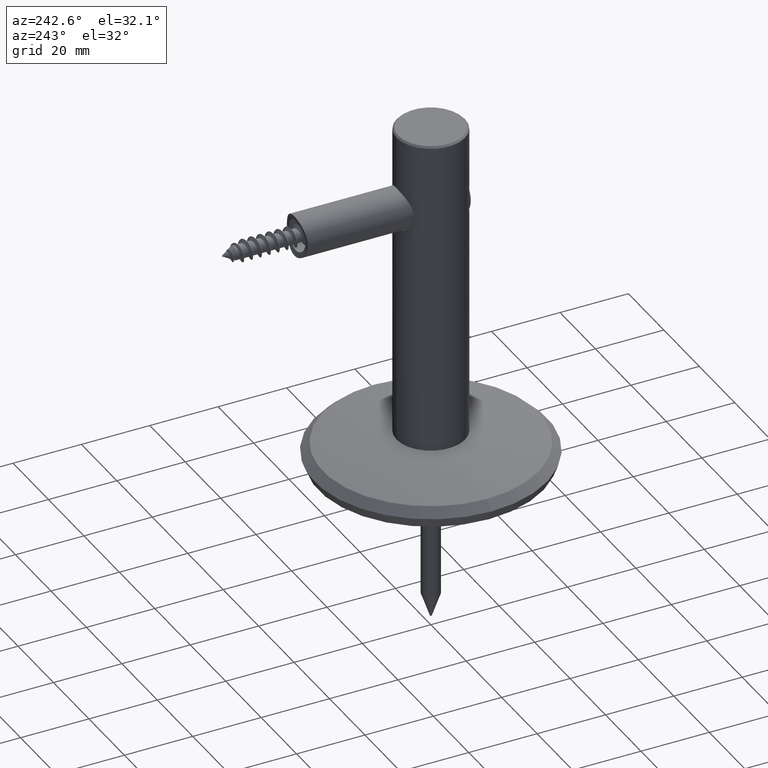
[diagram: clean part render]
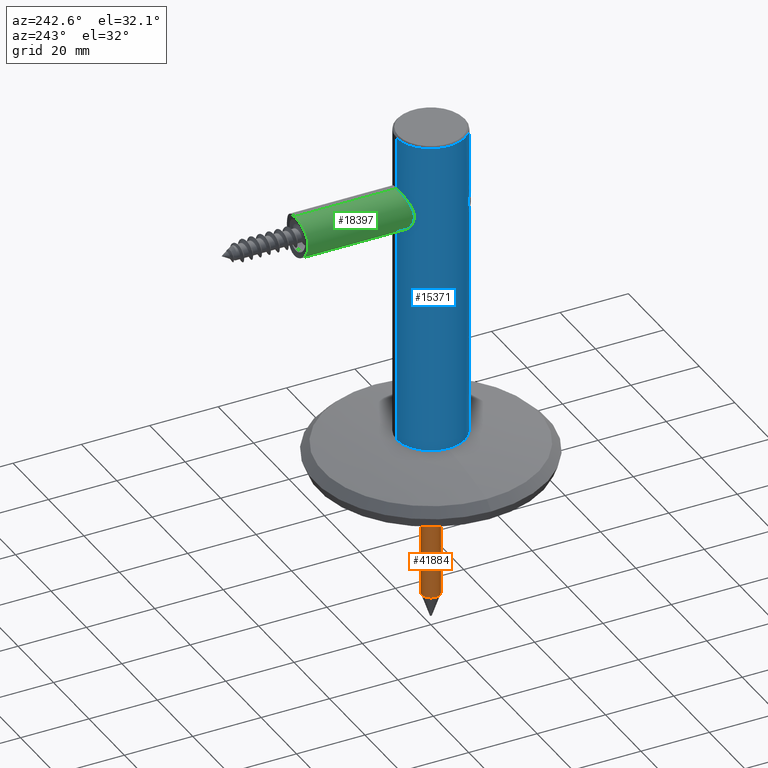
[diagram: same view with three faces highlighted in distinct colors, each labeled with its STEP entity id]
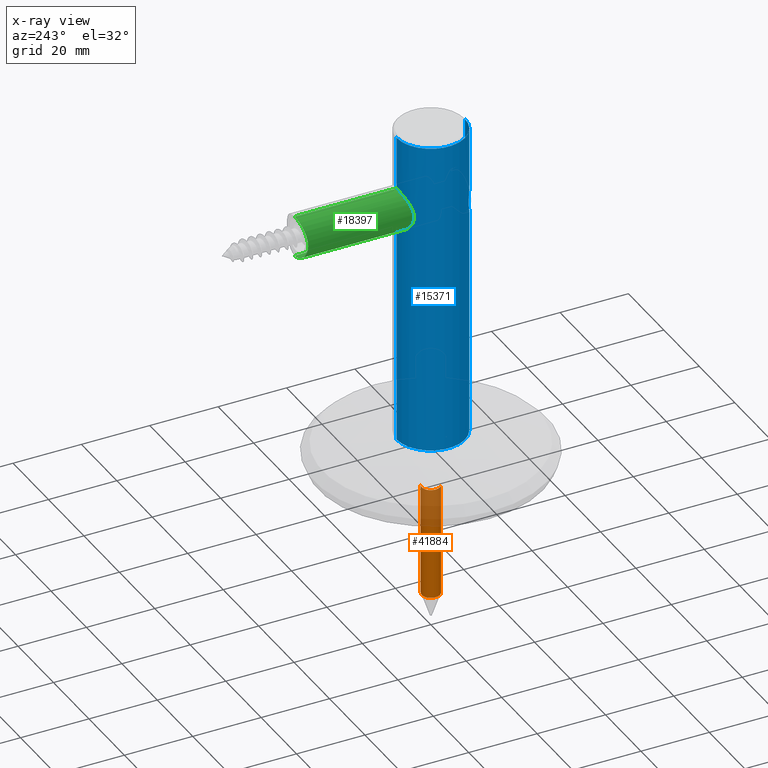
[diagram: x-ray of the same camera — body ghosted, the three highlighted faces saturated]
A machine part, auxiliary view with three faces highlighted in distinct colors.
The next image is the same camera in x-ray (body ghosted, the three faces saturated) — at least one of them is partly hidden behind the body in this view.
Their STEP definitions:

[orange] entity #41884 — the highlighted cylindrical surface (edge-blend (fillet) strip) has radius 2.65 mm, axis along (0, 0, 1).
#133 = AXIS2_PLACEMENT_3D ( 'NONE', #255, #23380, #23238 ) ;
#255 = CARTESIAN_POINT ( 'NONE',  ( 4.369811991584386443E-15, -38.00000000000000711, 1.925929944387235853E-30 ) ) ;
#1426 = VECTOR ( 'NONE', #23192, 1000.000000000000000 ) ;
#3486 = CARTESIAN_POINT ( 'NONE',  ( 4.336808689941963995E-16, -5.000000000000004441, 3.081487911019577365E-30 ) ) ;
#3767 = DIRECTION ( 'NONE',  ( -1.540743955509788682E-33, -1.000000000000000000, 7.703719777548943412E-34 ) ) ;
#5386 = EDGE_CURVE ( 'NONE', #16421, #29305, #13403, .T. ) ;
#6751 = DIRECTION ( 'NONE',  ( -1.192767006845509766E-16, 1.000000000000000000, 2.002967142162725287E-32 ) ) ;
#8569 = VECTOR ( 'NONE', #6751, 1000.000000000000000 ) ;
#8890 = ORIENTED_EDGE ( 'NONE', *, *, #41530, .T. ) ;
#8904 = CARTESIAN_POINT ( 'NONE',  ( 4.336808689941994563E-16, -5.000000000000004441, 1.155557966632341512E-30 ) ) ;
#11584 = EDGE_CURVE ( 'NONE', #35693, #16421, #12797, .T. ) ;
#12065 = DIRECTION ( 'NONE',  ( -1.192767006845509766E-16, 1.000000000000000000, 2.002967142162725287E-32 ) ) ;
#12797 = LINE ( 'NONE', #15960, #1426 ) ;
#13403 = CIRCLE ( 'NONE', #35400, 2.649999999999999023 ) ;
#13928 = ORIENTED_EDGE ( 'NONE', *, *, #5386, .T. ) ;
#15445 = EDGE_LOOP ( 'NONE', ( #8890, #33809, #13928, #32737 ) ) ;
#15960 = CARTESIAN_POINT ( 'NONE',  ( 2.649999999999999467, -5.000000000000004441, 1.774268510112162716E-16 ) ) ;
#16421 = VERTEX_POINT ( 'NONE', #32735 ) ;
#16715 = FACE_OUTER_BOUND ( 'NONE', #15445, .T. ) ;
#17023 = AXIS2_PLACEMENT_3D ( 'NONE', #8904, #12065, #21756 ) ;
#17056 = DIRECTION ( 'NONE',  ( 5.551115123125791330E-17, 0.000000000000000000, 1.000000000000000000 ) ) ;
#19844 = CIRCLE ( 'NONE', #133, 2.649999999999997247 ) ;
#21756 = DIRECTION ( 'NONE',  ( -1.000000000000000000, 0.000000000000000000, 5.551115123125788865E-17 ) ) ;
#23192 = DIRECTION ( 'NONE',  ( -1.192767006845509766E-16, 1.000000000000000000, 2.002967142162725287E-32 ) ) ;
#23238 = DIRECTION ( 'NONE',  ( -1.000000000000000000, 0.000000000000000000, 5.551115123125788865E-17 ) ) ;
#23380 = DIRECTION ( 'NONE',  ( -1.192767006845509766E-16, 1.000000000000000000, 2.002967142162725287E-32 ) ) ;
#26011 = CYLINDRICAL_SURFACE ( 'NONE', #17023, 2.649999999999999023 ) ;
#27988 = CARTESIAN_POINT ( 'NONE',  ( -2.649999999999993250, -38.00000000000000711, 1.471045507628349623E-16 ) ) ;
#29296 = LINE ( 'NONE', #36296, #8569 ) ;
#29305 = VERTEX_POINT ( 'NONE', #40324 ) ;
#30439 = EDGE_CURVE ( 'NONE', #34105, #29305, #29296, .T. ) ;
#32735 = CARTESIAN_POINT ( 'NONE',  ( 2.650000000000002576, -5.000000000000004441, 1.774268510112161484E-16 ) ) ;
#32737 = ORIENTED_EDGE ( 'NONE', *, *, #30439, .F. ) ;
#33809 = ORIENTED_EDGE ( 'NONE', *, *, #11584, .T. ) ;
#34105 = VERTEX_POINT ( 'NONE', #27988 ) ;
#35400 = AXIS2_PLACEMENT_3D ( 'NONE', #3486, #3767, #17056 ) ;
#35693 = VERTEX_POINT ( 'NONE', #41658 ) ;
#36296 = CARTESIAN_POINT ( 'NONE',  ( -2.649999999999998579, -5.000000000000004441, 1.471045507628345186E-16 ) ) ;
#40324 = CARTESIAN_POINT ( 'NONE',  ( -2.650000000000001688, -5.000000000000004441, 1.471045507628344446E-16 ) ) ;
#41530 = EDGE_CURVE ( 'NONE', #34105, #35693, #19844, .T. ) ;
#41658 = CARTESIAN_POINT ( 'NONE',  ( 2.650000000000001688, -38.00000000000000711, 1.774268510112166414E-16 ) ) ;
#41884 = ADVANCED_FACE ( 'NONE', ( #16715 ), #26011, .T. ) ;

[blue] entity #15371 — the highlighted cylindrical surface (partial cylindrical patch) has radius 10 mm, axis along (0, 0, -1).
#774 = CARTESIAN_POINT ( 'NONE',  ( -2.457174186745282096, -9.699437270301510594, 78.59456811138349508 ) ) ;
#862 = CIRCLE ( 'NONE', #10158, 9.999999999999987566 ) ;
#1167 = CARTESIAN_POINT ( 'NONE',  ( 2.311154935784771050E-15, -10.00000000000001776, 79.10000000000002274 ) ) ;
#1197 = CARTESIAN_POINT ( 'NONE',  ( -5.087154368414266159, -8.611798691936368044, 76.38380675357785776 ) ) ;
#1231 = CARTESIAN_POINT ( 'NONE',  ( -3.231176350246905304, 9.465125515268093537, 78.11855026395286927 ) ) ;
#1247 = CARTESIAN_POINT ( 'NONE',  ( -3.666632961282195513, -9.308008439816980228, 68.11265295109973295 ) ) ;
#1514 = CARTESIAN_POINT ( 'NONE',  ( -1.403813005560766491, 9.902980164608125691, 67.11165916234632789 ) ) ;
#1646 = CARTESIAN_POINT ( 'NONE',  ( -5.998146223145053746, 8.001431955169667987, 72.18365544772787246 ) ) ;
#1662 = CARTESIAN_POINT ( 'NONE',  ( -3.384054400561754328, -9.415323982167938865, 67.91277092575776919 ) ) ;
#1804 = CARTESIAN_POINT ( 'NONE',  ( -5.440551407277116169, -8.393070850260535565, 70.21920959023715625 ) ) ;
#1880 = CARTESIAN_POINT ( 'NONE',  ( 0.000000000000000000, 9.999999999999982236, 94.49999999999994316 ) ) ;
#1898 = EDGE_CURVE ( 'NONE', #29631, #33367, #37280, .T. ) ;
#2803 = CARTESIAN_POINT ( 'NONE',  ( -6.037779974283359330, -7.971665019287484277, 73.73679706541230416 ) ) ;
#4254 = CARTESIAN_POINT ( 'NONE',  ( -5.436598003498982479, -8.395571357975834204, 75.78795442250877556 ) ) ;
#4430 = CARTESIAN_POINT ( 'NONE',  ( -2.777311676397027362, -9.608021108032811952, 67.56603556446364678 ) ) ;
#4565 = CARTESIAN_POINT ( 'NONE',  ( -3.064673096970013333, 9.520526642615179114, 78.22006286501299144 ) ) ;
#4703 = CARTESIAN_POINT ( 'NONE',  ( -0.8103770617381570451, 9.975074806668049021, 66.99094149490500172 ) ) ;
#5821 = DIRECTION ( 'NONE',  ( 0.000000000000000000, 1.000000000000000000, 1.301042606982607046E-16 ) ) ;
#5934 = ORIENTED_EDGE ( 'NONE', *, *, #10392, .F. ) ;
#6176 = ORIENTED_EDGE ( 'NONE', *, *, #14144, .F. ) ;
#7303 = CARTESIAN_POINT ( 'NONE',  ( -3.670004657196928033, -9.306630549272245645, 77.88468685917253254 ) ) ;
#7881 = CARTESIAN_POINT ( 'NONE',  ( -5.729295447384023632, 8.198114526451783846, 74.98317838850394423 ) ) ;
#8012 = CARTESIAN_POINT ( 'NONE',  ( -1.019333223322620885, 9.949884950650000448, 78.96688847494655761 ) ) ;
#8036 = AXIS2_PLACEMENT_3D ( 'NONE', #23959, #13964, #26847 ) ;
#8111 = LINE ( 'NONE', #33148, #13302 ) ;
#8320 = CARTESIAN_POINT ( 'NONE',  ( -1.442266533413711471, -9.901847488652895990, 67.06205422235507285 ) ) ;
#9077 = DIRECTION ( 'NONE',  ( -0.000000000000000000, 1.224646799147353454E-16, -1.000000000000000000 ) ) ;
#9338 = CARTESIAN_POINT ( 'NONE',  ( -6.057055091978226002, -7.956889067146800443, 73.36719545397994580 ) ) ;
#9390 = VERTEX_POINT ( 'NONE', #1167 ) ;
#9644 = ORIENTED_EDGE ( 'NONE', *, *, #30826, .F. ) ;
#9902 = ORIENTED_EDGE ( 'NONE', *, *, #37251, .F. ) ;
#10158 = AXIS2_PLACEMENT_3D ( 'NONE', #42499, #38857, #5821 ) ;
#10392 = EDGE_CURVE ( 'NONE', #17184, #23651, #34960, .T. ) ;
#10592 = CARTESIAN_POINT ( 'NONE',  ( -4.197526623192088913, -9.080918269210894067, 77.43957995125818172 ) ) ;
#11048 = CARTESIAN_POINT ( 'NONE',  ( -3.716010006842555669, 9.290299550995953837, 68.20974042484493793 ) ) ;
#11191 = CARTESIAN_POINT ( 'NONE',  ( -4.805369897217455666, 8.773264498411421641, 69.30416128083891181 ) ) ;
#11204 = DIRECTION ( 'NONE',  ( -0.000000000000000000, 1.224646799147353454E-16, -1.000000000000000000 ) ) ;
#11471 = CARTESIAN_POINT ( 'NONE',  ( -4.012844323545344594, 9.164493463990080357, 68.45594532802100218 ) ) ;
#11603 = CARTESIAN_POINT ( 'NONE',  ( -0.4114436652122809845, 9.993619852167288542, 79.03947135338742669 ) ) ;
#12030 = CARTESIAN_POINT ( 'NONE',  ( -5.999999999999998224, -7.999999999999994671, 74.09999999999999432 ) ) ;
#13092 = B_SPLINE_CURVE_WITH_KNOTS ( 'NONE', 3,
 ( #13961, #21048, #24519, #34249, #1804, #21470, #41098, #34519, #28131, #1247, #1662, #24799, #4430, #37885, #34383, #14516, #8320, #27702, #24381, #37741 ),
 .UNSPECIFIED., .F., .F.,
 ( 4, 2, 2, 2, 2, 2, 2, 2, 2, 4 ),
 ( -0.008711526542428404962, -0.007622585724624861281, -0.006533644906821316732, -0.005444704089017772183, -0.004355763271214228502, -0.003266822453410684821, -0.002722352044508904306, -0.002177881635607122925, -0.001088940817803561029, 1.734723475976807094E-18 ),
 .UNSPECIFIED. ) ;
#13302 = VECTOR ( 'NONE', #36481, 1000.000000000000000 ) ;
#13961 = CARTESIAN_POINT ( 'NONE',  ( -5.999999999999998224, -7.999999999999994671, 71.89999999999999147 ) ) ;
#13964 = DIRECTION ( 'NONE',  ( -0.000000000000000000, 1.224646799147336690E-16, -1.000000000000000000 ) ) ;
#14144 = EDGE_CURVE ( 'NONE', #16873, #9390, #40442, .T. ) ;
#14222 = CARTESIAN_POINT ( 'NONE',  ( -5.650386224439183813, 8.251162796149685619, 70.82868621148307398 ) ) ;
#14226 = CARTESIAN_POINT ( 'NONE',  ( 0.000000000000000000, 9.999999999999987566, 2.000000000000001776 ) ) ;
#14250 = DIRECTION ( 'NONE',  ( 0.000000000000000000, 1.000000000000000000, 1.224646799147353454E-16 ) ) ;
#14331 = CARTESIAN_POINT ( 'NONE',  ( -5.999999999999998224, -7.999999999999994671, 74.09999999999999432 ) ) ;
#14368 = CARTESIAN_POINT ( 'NONE',  ( -5.420043719548607086, 8.405791692266086912, 70.28310870804058652 ) ) ;
#14503 = CARTESIAN_POINT ( 'NONE',  ( -4.557547830525050969, 8.906156173625262795, 69.00248699821740672 ) ) ;
#14516 = CARTESIAN_POINT ( 'NONE',  ( -1.787012622460111277, -9.845037829623526804, 67.15662796590193295 ) ) ;
#14778 = CARTESIAN_POINT ( 'NONE',  ( -5.719274872457605241, 8.203360804838673914, 71.01704708012771050 ) ) ;
#14952 = VECTOR ( 'NONE', #11204, 1000.000000000000000 ) ;
#15172 = CYLINDRICAL_SURFACE ( 'NONE', #33539, 9.999999999999994671 ) ;
#15371 = ADVANCED_FACE ( 'NONE', ( #26067 ), #15172, .T. ) ;
#16107 = CARTESIAN_POINT ( 'NONE',  ( 0.000000000000000000, 9.999999999999994671, 79.04999999999999716 ) ) ;
#16362 = DIRECTION ( 'NONE',  ( -0.000000000000000000, 1.224646799147353454E-16, -1.000000000000000000 ) ) ;
#16873 = VERTEX_POINT ( 'NONE', #19345 ) ;
#17069 = EDGE_CURVE ( 'NONE', #16873, #29631, #21378, .T. ) ;
#17184 = VERTEX_POINT ( 'NONE', #12030 ) ;
#17444 = DIRECTION ( 'NONE',  ( -0.000000000000000000, 1.224646799147353454E-16, -1.000000000000000000 ) ) ;
#17569 = CARTESIAN_POINT ( 'NONE',  ( -6.039532502095487310, 7.970239557477037273, 72.58984917605121723 ) ) ;
#17704 = CARTESIAN_POINT ( 'NONE',  ( -4.803483055192233842, 8.774327230309054926, 76.69844423236303044 ) ) ;
#17838 = CARTESIAN_POINT ( 'NONE',  ( -5.837361778259227307, 8.119756217449305424, 71.39768454451899515 ) ) ;
#17983 = CARTESIAN_POINT ( 'NONE',  ( -6.049945966138785991, 7.962295762615829275, 72.79533331141608699 ) ) ;
#18132 = CARTESIAN_POINT ( 'NONE',  ( -3.712617640283946585, 9.291548674023585974, 77.79261931526806961 ) ) ;
#18398 = VECTOR ( 'NONE', #16362, 1000.000000000000000 ) ;
#18846 = VERTEX_POINT ( 'NONE', #21676 ) ;
#18989 = ORIENTED_EDGE ( 'NONE', *, *, #28414, .T. ) ;
#19345 = CARTESIAN_POINT ( 'NONE',  ( 1.224646799147353256E-15, -10.00000000000000711, 94.49999999999994316 ) ) ;
#20030 = B_SPLINE_CURVE_WITH_KNOTS ( 'NONE', 3,
 ( #23620, #40338, #36423, #39768, #23766, #774, #27085, #27655, #7303, #10592, #30714, #20724, #1197, #4254, #30995, #20567, #24334, #14331 ),
 .UNSPECIFIED., .F., .F.,
 ( 4, 2, 2, 2, 2, 2, 2, 2, 4 ),
 ( 0.008697927336527633280, 0.009782168780050413959, 0.01086641022357319290, 0.01195065166709597185, 0.01303489311061875253, 0.01411913455414153321, 0.01520337599766431215, 0.01628761744118709109, 0.01737185888470987177 ),
 .UNSPECIFIED. ) ;
#20298 = ORIENTED_EDGE ( 'NONE', *, *, #1898, .T. ) ;
#20338 = VERTEX_POINT ( 'NONE', #41458 ) ;
#20471 = LINE ( 'NONE', #25332, #18398 ) ;
#20567 = CARTESIAN_POINT ( 'NONE',  ( -5.838105033781811670, -8.120325416966336363, 74.80375966365100737 ) ) ;
#20724 = CARTESIAN_POINT ( 'NONE',  ( -4.888823053991232293, -8.727140546316647374, 76.66459596162073353 ) ) ;
#21033 = CARTESIAN_POINT ( 'NONE',  ( -6.050107430202721126, 7.962173076571638752, 73.40452276754869843 ) ) ;
#21048 = CARTESIAN_POINT ( 'NONE',  ( -5.934115237488820860, -8.049413571883382801, 71.54062856812085158 ) ) ;
#21176 = CARTESIAN_POINT ( 'NONE',  ( -5.423591002924554871, 8.403485511692805332, 75.70970173211745191 ) ) ;
#21312 = CARTESIAN_POINT ( 'NONE',  ( -5.235132894256063096, 8.523828446510403722, 76.05701206750913457 ) ) ;
#21378 = CIRCLE ( 'NONE', #8036, 9.999999999999994671 ) ;
#21470 = CARTESIAN_POINT ( 'NONE',  ( -5.086953068162411995, -8.611976915611837313, 69.61543157838890750 ) ) ;
#21676 = CARTESIAN_POINT ( 'NONE',  ( 1.224646799147352270E-15, -9.999999999999987566, 1.999999999999999112 ) ) ;
#22026 = CARTESIAN_POINT ( 'NONE',  ( -0.8191968535057896350, 9.968482339578155660, 78.99778431032966353 ) ) ;
#23620 = CARTESIAN_POINT ( 'NONE',  ( 2.311154935784771050E-15, -10.00000000000001776, 79.10000000000002274 ) ) ;
#23651 = VERTEX_POINT ( 'NONE', #26050 ) ;
#23766 = CARTESIAN_POINT ( 'NONE',  ( -1.789271686033192532, -9.844556626790330611, 78.84255116969259802 ) ) ;
#23959 = CARTESIAN_POINT ( 'NONE',  ( 0.000000000000000000, -1.157291225194248412E-14, 94.49999999999994316 ) ) ;
#24087 = CARTESIAN_POINT ( 'NONE',  ( 0.000000000000000000, 9.999999999999994671, 1.224646799147352862E-15 ) ) ;
#24334 = CARTESIAN_POINT ( 'NONE',  ( -5.934279884923734372, -8.049290086307204106, 74.45847335496145547 ) ) ;
#24368 = CARTESIAN_POINT ( 'NONE',  ( 4.029265264640274852E-17, 9.999999999999985789, 66.94999999999998863 ) ) ;
#24381 = CARTESIAN_POINT ( 'NONE',  ( -0.3687708561522865525, -9.999999999999996447, 66.90000000000000568 ) ) ;
#24503 = CARTESIAN_POINT ( 'NONE',  ( -1.988704004959023663, 9.807504354462141194, 78.72762852094189157 ) ) ;
#24519 = CARTESIAN_POINT ( 'NONE',  ( -5.838174895473802195, -8.120235270157003526, 71.19730428107988018 ) ) ;
#24783 = CARTESIAN_POINT ( 'NONE',  ( -2.538213815823208819, 9.674347106947191577, 78.49540841507490541 ) ) ;
#24799 = CARTESIAN_POINT ( 'NONE',  ( -2.932480379695684203, -9.561673299767509349, 67.64827226190978138 ) ) ;
#25060 = CARTESIAN_POINT ( 'NONE',  ( 0.000000000000000000, 9.999999999999994671, 79.04999999999999716 ) ) ;
#25332 = CARTESIAN_POINT ( 'NONE',  ( 1.224646799147352665E-15, -9.999999999999994671, -1.224646799147352862E-15 ) ) ;
#26050 = CARTESIAN_POINT ( 'NONE',  ( -5.999999999999998224, -7.999999999999994671, 71.89999999999999147 ) ) ;
#26067 = FACE_OUTER_BOUND ( 'NONE', #27251, .T. ) ;
#26847 = DIRECTION ( 'NONE',  ( 0.000000000000000000, -1.000000000000000000, 0.000000000000000000 ) ) ;
#27085 = CARTESIAN_POINT ( 'NONE',  ( -2.776061618095941874, -9.612288853091376595, 78.44317553398471432 ) ) ;
#27251 = EDGE_LOOP ( 'NONE', ( #6176, #27275, #20298, #34584, #18989, #29380, #9644, #42007, #5934, #9902 ) ) ;
#27275 = ORIENTED_EDGE ( 'NONE', *, *, #17069, .T. ) ;
#27577 = CARTESIAN_POINT ( 'NONE',  ( 0.000000000000000000, 0.000000000000000000, 0.000000000000000000 ) ) ;
#27655 = CARTESIAN_POINT ( 'NONE',  ( -3.385571134193873011, -9.414909622404428191, 78.08651020804522602 ) ) ;
#27689 = CARTESIAN_POINT ( 'NONE',  ( -3.230484222280025186, 9.465388038487750677, 67.88094969924306099 ) ) ;
#27702 = CARTESIAN_POINT ( 'NONE',  ( -0.7345510077027587181, -9.979336213347544060, 66.93371879742298347 ) ) ;
#27831 = CARTESIAN_POINT ( 'NONE',  ( -1.609276841110042433, 9.877612619151967976, 78.84584649295069880 ) ) ;
#27978 = CARTESIAN_POINT ( 'NONE',  ( -1.985635104201227019, 9.802827385932335602, 67.28158622169590330 ) ) ;
#28114 = CARTESIAN_POINT ( 'NONE',  ( -5.887058039441871671, 8.083627796943861910, 71.59100292581754843 ) ) ;
#28131 = CARTESIAN_POINT ( 'NONE',  ( -4.197116238931466903, -9.081158167621740773, 68.55989034751920030 ) ) ;
#28414 = EDGE_CURVE ( 'NONE', #20338, #38178, #8111, .T. ) ;
#29380 = ORIENTED_EDGE ( 'NONE', *, *, #29737, .F. ) ;
#29631 = VERTEX_POINT ( 'NONE', #1880 ) ;
#29737 = EDGE_CURVE ( 'NONE', #18846, #38178, #862, .T. ) ;
#29741 = B_SPLINE_CURVE_WITH_KNOTS ( 'NONE', 3,
 ( #24368, #37582, #4703, #1514, #40947, #27978, #34236, #30745, #31163, #34645, #27689, #11048, #11471, #14503, #11191, #37871, #14368, #14222, #14778, #17838, #28114, #38010, #1646, #17569, #17983, #21033, #41225, #41085, #7881, #21176, #21312, #17704, #34095, #31031, #18132, #1231, #4565, #41367, #24783, #24503, #27831, #8012, #22026, #11603, #34780, #25060 ),
 .UNSPECIFIED., .F., .F.,
 ( 4, 2, 2, 2, 2, 2, 2, 2, 2, 2, 2, 2, 2, 2, 2, 2, 2, 2, 2, 2, 2, 2, 4 ),
 ( 0.01941990436530885780, 0.02063116917293929958, 0.02123680157675451527, 0.02184243398056973096, 0.02244806638438494664, 0.02305369878820016233, 0.02426496359583059370, 0.02547622840346102854, 0.02668749321109145992, 0.02729312561490667560, 0.02789875801872189476, 0.02850439042253710697, 0.02911002282635232613, 0.03032128763398279914, 0.03153255244161327214, 0.03274381724924374515, 0.03395508205687421122, 0.03516634686450469116, 0.03577197926831991726, 0.03637761167213515723, 0.03758887647976561636, 0.03819450888358084939, 0.03880014128739607548 ),
 .UNSPECIFIED. ) ;
#30714 = CARTESIAN_POINT ( 'NONE',  ( -4.442803994972023496, -8.962425209208769061, 77.19420398614846590 ) ) ;
#30745 = CARTESIAN_POINT ( 'NONE',  ( -2.537553960302305178, 9.674504622938620457, 67.50431735431011759 ) ) ;
#30826 = EDGE_CURVE ( 'NONE', #33263, #18846, #20471, .T. ) ;
#30995 = CARTESIAN_POINT ( 'NONE',  ( -5.588327609558261244, -8.294199767979240079, 75.47135870280536096 ) ) ;
#31031 = CARTESIAN_POINT ( 'NONE',  ( -4.009665901186634684, 9.165953874395464496, 77.54708089343203881 ) ) ;
#31163 = CARTESIAN_POINT ( 'NONE',  ( -2.715194575230796215, 9.626026976772983801, 67.58991585138296898 ) ) ;
#32629 = CARTESIAN_POINT ( 'NONE',  ( -5.999999999999998224, -7.999999999999994671, 71.89999999999999147 ) ) ;
#33060 = CARTESIAN_POINT ( 'NONE',  ( -6.056865859714453570, -7.957033113640100908, 72.62734759611845448 ) ) ;
#33148 = CARTESIAN_POINT ( 'NONE',  ( 0.000000000000000000, 9.999999999999994671, 1.224646799147352862E-15 ) ) ;
#33263 = VERTEX_POINT ( 'NONE', #33807 ) ;
#33367 = VERTEX_POINT ( 'NONE', #16107 ) ;
#33539 = AXIS2_PLACEMENT_3D ( 'NONE', #27577, #17444, #14250 ) ;
#33807 = CARTESIAN_POINT ( 'NONE',  ( 1.224646799147353651E-15, -10.00000000000000355, 66.90000000000000568 ) ) ;
#34095 = CARTESIAN_POINT ( 'NONE',  ( -4.558202457909661831, 8.905892511106925369, 76.99701834412348944 ) ) ;
#34236 = CARTESIAN_POINT ( 'NONE',  ( -2.172773312258164502, 9.762903048491537561, 67.35015363243199715 ) ) ;
#34249 = CARTESIAN_POINT ( 'NONE',  ( -5.591957626596479436, -8.291713746578073696, 70.53747936709092414 ) ) ;
#34383 = CARTESIAN_POINT ( 'NONE',  ( -2.290926676104617421, -9.735563720689203393, 67.34369752619787164 ) ) ;
#34519 = CARTESIAN_POINT ( 'NONE',  ( -4.443868385038916458, -8.961860785460713075, 68.80707233755414620 ) ) ;
#34584 = ORIENTED_EDGE ( 'NONE', *, *, #35615, .F. ) ;
#34645 = CARTESIAN_POINT ( 'NONE',  ( -3.061321818352621627, 9.521606254377575240, 67.77796966679066770 ) ) ;
#34780 = CARTESIAN_POINT ( 'NONE',  ( -0.2050936952828282811, 9.999999999999998224, 79.05000000000003979 ) ) ;
#34960 = B_SPLINE_CURVE_WITH_KNOTS ( 'NONE', 3,
 ( #38606, #2803, #9338, #33060, #39477, #32629 ),
 .UNSPECIFIED., .F., .F.,
 ( 4, 2, 4 ),
 ( 0.002051106008994781071, 0.003147755811804922674, 0.004244405614615064277 ),
 .UNSPECIFIED. ) ;
#35615 = EDGE_CURVE ( 'NONE', #20338, #33367, #29741, .T. ) ;
#36423 = CARTESIAN_POINT ( 'NONE',  ( -0.7251650388042697459, -9.980085747078266678, 79.06751315753319886 ) ) ;
#36481 = DIRECTION ( 'NONE',  ( -0.000000000000000000, 1.224646799147353454E-16, -1.000000000000000000 ) ) ;
#36875 = EDGE_CURVE ( 'NONE', #23651, #33263, #13092, .T. ) ;
#37251 = EDGE_CURVE ( 'NONE', #9390, #17184, #20030, .T. ) ;
#37280 = LINE ( 'NONE', #24087, #14952 ) ;
#37582 = CARTESIAN_POINT ( 'NONE',  ( -0.4084737172014522022, 9.999999999999987566, 66.95000000000001705 ) ) ;
#37741 = CARTESIAN_POINT ( 'NONE',  ( 1.224646799147353651E-15, -10.00000000000000355, 66.90000000000000568 ) ) ;
#37871 = CARTESIAN_POINT ( 'NONE',  ( -5.235192493834924576, 8.523761456109879120, 69.94327573379139551 ) ) ;
#37885 = CARTESIAN_POINT ( 'NONE',  ( -2.457036283049910175, -9.694869904440784225, 67.41390992390012116 ) ) ;
#38010 = CARTESIAN_POINT ( 'NONE',  ( -5.967448871653360243, 8.024465383032298504, 71.98398864228050797 ) ) ;
#38178 = VERTEX_POINT ( 'NONE', #14226 ) ;
#38606 = CARTESIAN_POINT ( 'NONE',  ( -5.999999999999998224, -7.999999999999994671, 74.09999999999999432 ) ) ;
#38857 = DIRECTION ( 'NONE',  ( -0.000000000000000000, 1.224646799147353454E-16, -1.000000000000000000 ) ) ;
#39477 = CARTESIAN_POINT ( 'NONE',  ( -6.037620414525908252, -7.971784689105573918, 72.26166898510129499 ) ) ;
#39768 = CARTESIAN_POINT ( 'NONE',  ( -1.436448137794693158, -9.902756818177692821, 78.93946100229376839 ) ) ;
#40338 = CARTESIAN_POINT ( 'NONE',  ( -0.3649548137492562572, -10.00000000000001066, 79.10000000000002274 ) ) ;
#40442 = LINE ( 'NONE', #42596, #42005 ) ;
#40947 = CARTESIAN_POINT ( 'NONE',  ( -1.601219790535092002, 9.872905687173354039, 67.16226944015626543 ) ) ;
#41085 = CARTESIAN_POINT ( 'NONE',  ( -5.848076573791711752, 8.112340959712485144, 74.60230142844285695 ) ) ;
#41098 = CARTESIAN_POINT ( 'NONE',  ( -4.887575619970187191, -8.727801528483556837, 69.33391037137317880 ) ) ;
#41225 = CARTESIAN_POINT ( 'NONE',  ( -6.009739666643318934, 7.993316245384894714, 73.80647295038042444 ) ) ;
#41367 = CARTESIAN_POINT ( 'NONE',  ( -2.718732791609658861, 9.625026792267307840, 78.40830560469777311 ) ) ;
#41458 = CARTESIAN_POINT ( 'NONE',  ( 4.029265264640274852E-17, 9.999999999999985789, 66.94999999999998863 ) ) ;
#42005 = VECTOR ( 'NONE', #9077, 1000.000000000000000 ) ;
#42007 = ORIENTED_EDGE ( 'NONE', *, *, #36875, .F. ) ;
#42499 = CARTESIAN_POINT ( 'NONE',  ( 0.000000000000000000, -2.449293598294707400E-16, 2.000000000000000444 ) ) ;
#42596 = CARTESIAN_POINT ( 'NONE',  ( 1.224646799147352665E-15, -9.999999999999994671, -1.224646799147352862E-15 ) ) ;

[green] entity #18397 — the highlighted cylindrical surface (edge-blend (fillet) strip) has radius 6 mm, axis along (-0, -1, -0).
#496 = VERTEX_POINT ( 'NONE', #12868 ) ;
#981 = EDGE_LOOP ( 'NONE', ( #9408, #20563, #27427, #4735 ) ) ;
#1903 = CARTESIAN_POINT ( 'NONE',  ( 7.348785364234270165E-16, 39.86677595657787521, 6.000000000000000888 ) ) ;
#2047 = CARTESIAN_POINT ( 'NONE',  ( -5.961386802456495992, 39.01102457284437719, -0.7854129667501479339 ) ) ;
#2334 = CARTESIAN_POINT ( 'NONE',  ( -0.7908140422925846735, 39.85505454503419287, -5.960675948094186438 ) ) ;
#2766 = FACE_OUTER_BOUND ( 'NONE', #981, .T. ) ;
#2769 = CARTESIAN_POINT ( 'NONE',  ( 4.282583449921128537E-16, 39.86677595657787521, -6.000000000000000888 ) ) ;
#3193 = LINE ( 'NONE', #13174, #23353 ) ;
#4735 = ORIENTED_EDGE ( 'NONE', *, *, #7679, .T. ) ;
#4812 = CARTESIAN_POINT ( 'NONE',  ( -1.940025159554571665, 39.77759317860548549, 5.691176641451610507 ) ) ;
#4954 = CARTESIAN_POINT ( 'NONE',  ( -4.767826730278489578, 39.31634975640431406, -3.663776071939537360 ) ) ;
#5104 = CARTESIAN_POINT ( 'NONE',  ( -3.663581196725830047, 39.54185171160022350, 4.767704155232880936 ) ) ;
#5379 = CARTESIAN_POINT ( 'NONE',  ( -1.945894607542806742, 39.77703341008690074, -5.689179241095924766 ) ) ;
#5537 = CARTESIAN_POINT ( 'NONE',  ( -1.563029231404520214, 39.81043210133497467, -5.806202220854063789 ) ) ;
#7679 = EDGE_CURVE ( 'NONE', #26764, #33474, #39402, .T. ) ;
#7987 = CARTESIAN_POINT ( 'NONE',  ( -3.013945904030062906, 39.64711374446569181, 5.202783887920806372 ) ) ;
#8411 = CARTESIAN_POINT ( 'NONE',  ( -0.3927368600506273011, 39.86677595657788231, 6.000000000000001776 ) ) ;
#8557 = CARTESIAN_POINT ( 'NONE',  ( -5.387574997671332966, 39.16563756549380315, 2.670399795066904058 ) ) ;
#9408 = ORIENTED_EDGE ( 'NONE', *, *, #21661, .F. ) ;
#9731 = DIRECTION ( 'NONE',  ( -0.000000000000000000, -1.000000000000000000, -0.000000000000000000 ) ) ;
#9746 = DIRECTION ( 'NONE',  ( 0.000000000000000000, 0.000000000000000000, 1.000000000000000000 ) ) ;
#9880 = CARTESIAN_POINT ( 'NONE',  ( 0.000000000000000000, 40.00000000000000000, 0.000000000000000000 ) ) ;
#10007 = DIRECTION ( 'NONE',  ( -0.000000000000000000, -1.000000000000000000, -0.000000000000000000 ) ) ;
#10141 = B_SPLINE_CURVE_WITH_KNOTS ( 'NONE', 3,
 ( #1903, #8411, #21291, #34893, #4812, #18242, #7987, #5104, #28088, #11733, #28225, #27953, #15046, #28373, #8557, #31280, #38427, #18384, #11443, #18527, #18099, #41627, #2047, #34623, #11302, #21718, #41341, #4954, #25028, #11881, #35043, #25180, #15186, #41770, #21861, #5379, #5537, #2334, #12027, #2769 ),
 .UNSPECIFIED., .F., .F.,
 ( 4, 2, 2, 2, 2, 2, 2, 2, 2, 2, 2, 2, 2, 2, 2, 2, 2, 2, 2, 4 ),
 ( 0.01885530596887355012, 0.02003343805342193765, 0.02121157013797032517, 0.02238970222251870923, 0.02356783430706709676, 0.02415690034934129052, 0.02474596639161548081, 0.02592409847616387181, 0.02710223056071225933, 0.02769129660298644963, 0.02828036264526064686, 0.02945849472980903092, 0.03063662681435741844, 0.03181475889890580250, 0.03299289098345419002, 0.03358195702572838032, 0.03417102306800257061, 0.03534915515255095120, 0.03652728723709933178, 0.03770541932164770543 ),
 .UNSPECIFIED. ) ;
#11302 = CARTESIAN_POINT ( 'NONE',  ( -5.691000992974683648, 39.08587007480336695, -1.940571018830644423 ) ) ;
#11443 = CARTESIAN_POINT ( 'NONE',  ( -5.950782786971636540, 39.01388517066094863, 0.7920059584994796342 ) ) ;
#11733 = CARTESIAN_POINT ( 'NONE',  ( -4.379526882826519696, 39.40091599897961316, 4.105853760113749473 ) ) ;
#11881 = CARTESIAN_POINT ( 'NONE',  ( -4.106542281007299344, 39.45667399872763781, -4.378829263189588872 ) ) ;
#12027 = CARTESIAN_POINT ( 'NONE',  ( -0.3985343531787722271, 39.86677595657786810, -6.000000000000001776 ) ) ;
#12868 = CARTESIAN_POINT ( 'NONE',  ( 4.282583449921128537E-16, 39.86677595657787521, -6.000000000000000888 ) ) ;
#12904 = DIRECTION ( 'NONE',  ( 0.000000000000000000, 0.000000000000000000, -1.000000000000000000 ) ) ;
#13174 = CARTESIAN_POINT ( 'NONE',  ( 7.347880794884120722E-16, 40.00000000000000000, 6.000000000000000888 ) ) ;
#13623 = CARTESIAN_POINT ( 'NONE',  ( 7.347880794884120722E-16, 0.000000000000000000, 6.000000000000000888 ) ) ;
#14438 = CARTESIAN_POINT ( 'NONE',  ( 0.000000000000000000, 0.000000000000000000, -6.000000000000000888 ) ) ;
#15046 = CARTESIAN_POINT ( 'NONE',  ( -4.877444316915770628, 39.29023204928930113, 3.499777847767239436 ) ) ;
#15186 = CARTESIAN_POINT ( 'NONE',  ( -3.500786555539173950, 39.56823632701032523, -4.876773007445482477 ) ) ;
#16285 = VECTOR ( 'NONE', #32557, 1000.000000000000000 ) ;
#18099 = CARTESIAN_POINT ( 'NONE',  ( -5.999970890992127437, 39.00000823839837949, 0.1986379970142011508 ) ) ;
#18242 = CARTESIAN_POINT ( 'NONE',  ( -2.662935658242311376, 39.69628743181432640, 5.390914844807952022 ) ) ;
#18384 = CARTESIAN_POINT ( 'NONE',  ( -5.921602644399784232, 39.02208673504235747, 0.9864243860285004661 ) ) ;
#18397 = ADVANCED_FACE ( 'NONE', ( #2766 ), #21883, .T. ) ;
#18527 = CARTESIAN_POINT ( 'NONE',  ( -5.990013146693849322, 39.00283265901343555, 0.3985369725024903165 ) ) ;
#20563 = ORIENTED_EDGE ( 'NONE', *, *, #22786, .T. ) ;
#21291 = CARTESIAN_POINT ( 'NONE',  ( -0.7857620104761188218, 39.85531621128593827, 5.961577234803183245 ) ) ;
#21661 = EDGE_CURVE ( 'NONE', #28369, #33474, #3193, .T. ) ;
#21718 = CARTESIAN_POINT ( 'NONE',  ( -5.390535398939861444, 39.16486600748005031, -2.663726017055905171 ) ) ;
#21861 = CARTESIAN_POINT ( 'NONE',  ( -2.668671955346761937, 39.69554027743483005, -5.388084655582786375 ) ) ;
#21883 = CYLINDRICAL_SURFACE ( 'NONE', #33862, 6.000000000000000888 ) ;
#22786 = EDGE_CURVE ( 'NONE', #28369, #496, #10141, .T. ) ;
#22892 = DIRECTION ( 'NONE',  ( 0.000000000000000000, 1.000000000000000000, 0.000000000000000000 ) ) ;
#23353 = VECTOR ( 'NONE', #10007, 1000.000000000000000 ) ;
#25028 = CARTESIAN_POINT ( 'NONE',  ( -4.519030231717185764, 39.37239402637399621, -3.966069421012515583 ) ) ;
#25180 = CARTESIAN_POINT ( 'NONE',  ( -3.659761668993716910, 39.54057707642264319, -4.758622854168131688 ) ) ;
#26764 = VERTEX_POINT ( 'NONE', #14438 ) ;
#27427 = ORIENTED_EDGE ( 'NONE', *, *, #31509, .T. ) ;
#27953 = CARTESIAN_POINT ( 'NONE',  ( -4.761199180085127658, 39.31712859228571944, 3.656415758172712138 ) ) ;
#28088 = CARTESIAN_POINT ( 'NONE',  ( -3.964276376799458212, 39.48570432169955780, 4.520804803982510833 ) ) ;
#28225 = CARTESIAN_POINT ( 'NONE',  ( -4.512491946779505270, 39.37242490906735526, 3.959268904647315512 ) ) ;
#28369 = VERTEX_POINT ( 'NONE', #29649 ) ;
#28373 = CARTESIAN_POINT ( 'NONE',  ( -5.202397460826470699, 39.21284511678085494, 3.014414180720894176 ) ) ;
#29647 = CARTESIAN_POINT ( 'NONE',  ( 0.000000000000000000, 40.00000000000000000, -6.000000000000000888 ) ) ;
#29649 = CARTESIAN_POINT ( 'NONE',  ( 7.348785364234270165E-16, 39.86677595657787521, 6.000000000000000888 ) ) ;
#31280 = CARTESIAN_POINT ( 'NONE',  ( -5.691954975217570656, 39.08562598345534411, 1.938723286372394883 ) ) ;
#31509 = EDGE_CURVE ( 'NONE', #496, #26764, #35504, .T. ) ;
#32557 = DIRECTION ( 'NONE',  ( -0.000000000000000000, -1.000000000000000000, -0.000000000000000000 ) ) ;
#32750 = CARTESIAN_POINT ( 'NONE',  ( 0.000000000000000000, 0.000000000000000000, 0.000000000000000000 ) ) ;
#33474 = VERTEX_POINT ( 'NONE', #13623 ) ;
#33862 = AXIS2_PLACEMENT_3D ( 'NONE', #9880, #9731, #12904 ) ;
#34623 = CARTESIAN_POINT ( 'NONE',  ( -5.807638100490195576, 39.05376611899017547, -1.557673210457313440 ) ) ;
#34893 = CARTESIAN_POINT ( 'NONE',  ( -1.564912541669909674, 39.81035341677710448, 5.805934360682633688 ) ) ;
#35043 = CARTESIAN_POINT ( 'NONE',  ( -3.962259874287239025, 39.48485087254294257, -4.509860710782562343 ) ) ;
#35504 = LINE ( 'NONE', #29647, #16285 ) ;
#37941 = AXIS2_PLACEMENT_3D ( 'NONE', #32750, #22892, #9746 ) ;
#38427 = CARTESIAN_POINT ( 'NONE',  ( -5.806108110380638010, 39.05418668130603521, 1.562930708838027094 ) ) ;
#39402 = CIRCLE ( 'NONE', #37941, 6.000000000000000888 ) ;
#41341 = CARTESIAN_POINT ( 'NONE',  ( -5.206236184183812732, 39.21191835892614819, -3.008410149858220084 ) ) ;
#41627 = CARTESIAN_POINT ( 'NONE',  ( -6.000058023881838842, 38.99998357814681782, -0.3946323561158853188 ) ) ;
#41770 = CARTESIAN_POINT ( 'NONE',  ( -3.012141485592890966, 39.64739288236551573, -5.203910987434446689 ) ) ;